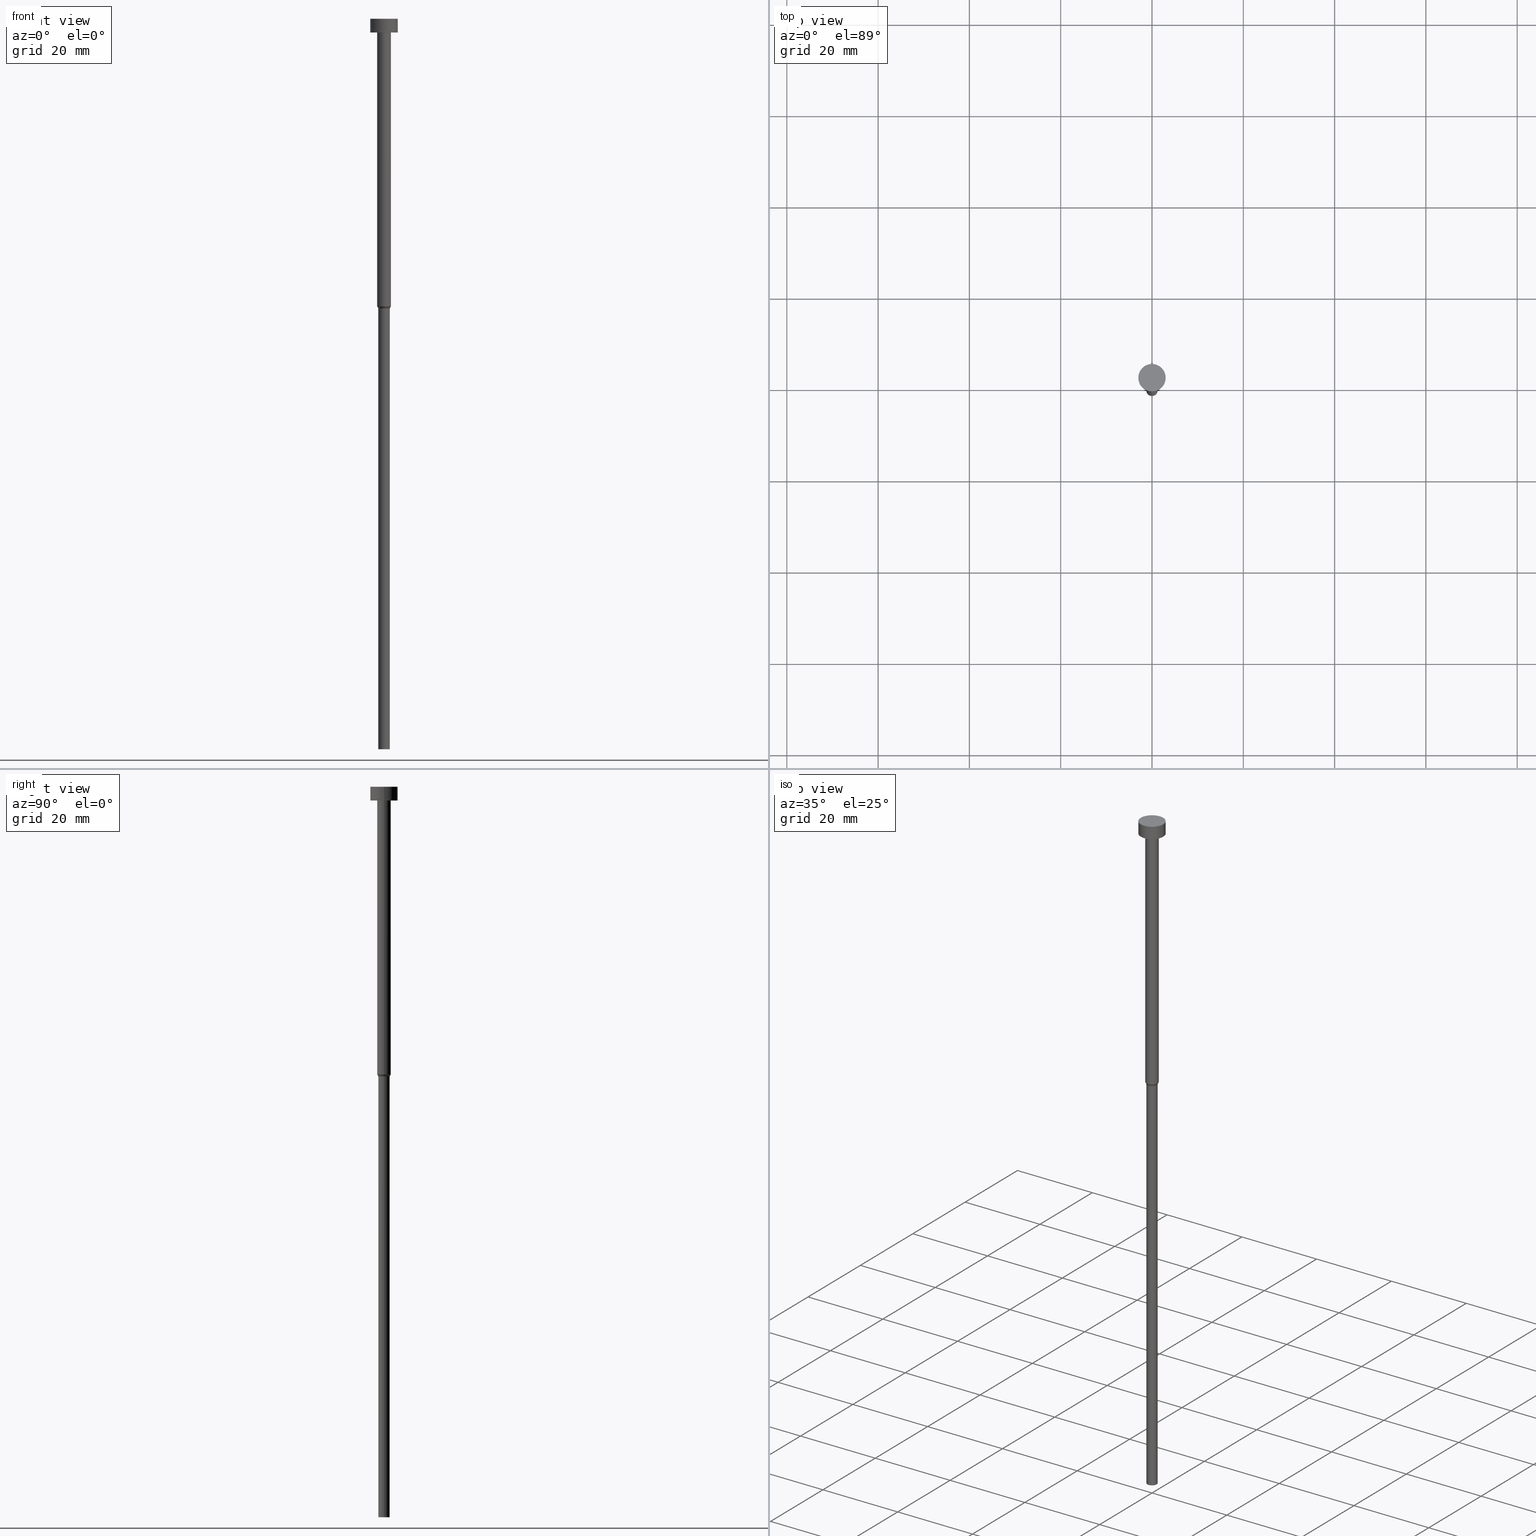
[diagram: canonical four-view strip — front | top / right | iso, engineering-drawing reading convention]
A machine part, canonical four-view strip (front | top / right | iso — engineering-drawing reading convention). The complete STEP part file that produces these views, byte-faithful:
ISO-10303-21;
HEADER;
FILE_DESCRIPTION (( 'STEP AP203' ),
    '1' );
FILE_NAME ('3f67.STEP',
    '2023-02-13T10:00:18',
    ( '' ),
    ( '' ),
    'SwSTEP 2.0',
    'SolidWorks 2019',
    '' );
FILE_SCHEMA (( 'CONFIG_CONTROL_DESIGN' ));
ENDSEC;

DATA;
#1 = EDGE_CURVE ( 'NONE', #96, #261, #192, .T. ) ;
#2 = CC_DESIGN_APPROVAL ( #142, ( #26 ) ) ;
#3 = CYLINDRICAL_SURFACE ( 'NONE', #204, 3.000000000000000000 ) ;
#4 = APPLICATION_PROTOCOL_DEFINITION ( 'international standard', 'config_control_design', 1994, #50 ) ;
#5 = DIRECTION ( 'NONE',  ( -0.000000000000000000, -0.000000000000000000, 1.000000000000000000 ) ) ;
#6 = ORIENTED_EDGE ( 'NONE', *, *, #60, .T. ) ;
#7 = DIRECTION ( 'NONE',  ( 1.000000000000000000, 0.000000000000000000, 0.000000000000000000 ) ) ;
#8 = SECURITY_CLASSIFICATION_LEVEL ( 'unclassified' ) ;
#9 = CARTESIAN_POINT ( 'NONE',  ( 0.000000000000000000, 0.000000000000000000, 0.000000000000000000 ) ) ;
#10 = APPROVAL_STATUS ( 'not_yet_approved' ) ;
#11 = EDGE_LOOP ( 'NONE', ( #21, #144, #273, #68 ) ) ;
#12 = PERSON_AND_ORGANIZATION ( #200, #281 ) ;
#13 = DIRECTION ( 'NONE',  ( 1.000000000000000000, 0.000000000000000000, 0.000000000000000000 ) ) ;
#14 = CIRCLE ( 'NONE', #118, 1.500000000000000000 ) ;
#15 = VERTEX_POINT ( 'NONE', #299 ) ;
#16 = FACE_OUTER_BOUND ( 'NONE', #74, .T. ) ;
#17 = ADVANCED_FACE ( 'NONE', ( #54 ), #3, .T. ) ;
#18 = ORIENTED_EDGE ( 'NONE', *, *, #148, .F. ) ;
#19 = AXIS2_PLACEMENT_3D ( 'NONE', #147, #85, #330 ) ;
#20 = SECURITY_CLASSIFICATION ( '', '', #8 ) ;
#21 = ORIENTED_EDGE ( 'NONE', *, *, #128, .F. ) ;
#22 = DIRECTION ( 'NONE',  ( -0.000000000000000000, -0.000000000000000000, 1.000000000000000000 ) ) ;
#23 = MANIFOLD_SOLID_BREP ( 'Rotovat1', #104 ) ;
#24 = CC_DESIGN_PERSON_AND_ORGANIZATION_ASSIGNMENT ( #62, #336, ( #20 ) ) ;
#25 = CALENDAR_DATE ( 2023, 13, 2 ) ;
#26 = PRODUCT_DEFINITION ( 'NEZN�M�', '', #177, #293 ) ;
#27 = PRODUCT ( '3f67', '3f67', '', ( #39 ) ) ;
#28 = COORDINATED_UNIVERSAL_TIME_OFFSET ( 1, 0, .AHEAD. ) ;
#29 = LINE ( 'NONE', #228, #346 ) ;
#30 = PERSON_AND_ORGANIZATION ( #200, #281 ) ;
#31 = CARTESIAN_POINT ( 'NONE',  ( -1.500000000000000000, 1.836970198721029934E-16, -63.00000000000000000 ) ) ;
#32 = CARTESIAN_POINT ( 'NONE',  ( 0.000000000000000000, 0.000000000000000000, 0.000000000000000000 ) ) ;
#33 = PERSON_AND_ORGANIZATION_ROLE ( 'creator' ) ;
#34 = CARTESIAN_POINT ( 'NONE',  ( 0.000000000000000000, 0.000000000000000000, -3.673940397442059868E-16 ) ) ;
#35 = CALENDAR_DATE ( 2023, 13, 2 ) ;
#36 = DIRECTION ( 'NONE',  ( -0.000000000000000000, -0.000000000000000000, 1.000000000000000000 ) ) ;
#37 = UNCERTAINTY_MEASURE_WITH_UNIT (LENGTH_MEASURE( 1.000000000000000082E-05 ), #139, 'distance_accuracy_value', 'NONE');
#38 = AXIS2_PLACEMENT_3D ( 'NONE', #92, #213, #316 ) ;
#39 = MECHANICAL_CONTEXT ( 'NONE', #50, 'mechanical' ) ;
#40 = VECTOR ( 'NONE', #269, 1000.000000000000000 ) ;
#41 = FACE_OUTER_BOUND ( 'NONE', #159, .T. ) ;
#42 = EDGE_CURVE ( 'NONE', #102, #226, #244, .T. ) ;
#43 = DATE_AND_TIME ( #35, #58 ) ;
#44 = ORIENTED_EDGE ( 'NONE', *, *, #234, .T. ) ;
#45 = DIRECTION ( 'NONE',  ( -0.000000000000000000, -0.000000000000000000, 1.000000000000000000 ) ) ;
#46 = ORIENTED_EDGE ( 'NONE', *, *, #1, .T. ) ;
#47 = PERSON_AND_ORGANIZATION ( #200, #281 ) ;
#48 = ORIENTED_EDGE ( 'NONE', *, *, #148, .T. ) ;
#49 = COORDINATED_UNIVERSAL_TIME_OFFSET ( 1, 0, .AHEAD. ) ;
#50 = APPLICATION_CONTEXT ( 'configuration controlled 3d designs of mechanical parts and assemblies' ) ;
#51 = PRODUCT_DEFINITION_SHAPE ( 'NONE', 'NONE',  #26 ) ;
#52 = DIRECTION ( 'NONE',  ( -0.000000000000000000, -0.000000000000000000, 1.000000000000000000 ) ) ;
#53 = COORDINATED_UNIVERSAL_TIME_OFFSET ( 1, 0, .AHEAD. ) ;
#54 = FACE_OUTER_BOUND ( 'NONE', #11, .T. ) ;
#55 = CYLINDRICAL_SURFACE ( 'NONE', #129, 1.500000000000000000 ) ;
#56 = CALENDAR_DATE ( 2023, 13, 2 ) ;
#57 = APPROVAL_DATE_TIME ( #248, #116 ) ;
#58 = LOCAL_TIME ( 11, 0, 18.00000000000000000, #275 ) ;
#59 = DIRECTION ( 'NONE',  ( -0.000000000000000000, -0.000000000000000000, 1.000000000000000000 ) ) ;
#60 = EDGE_CURVE ( 'NONE', #261, #96, #315, .T. ) ;
#61 = CYLINDRICAL_SURFACE ( 'NONE', #245, 1.250000000000000000 ) ;
#62 = PERSON_AND_ORGANIZATION ( #200, #281 ) ;
#63 = CARTESIAN_POINT ( 'NONE',  ( 1.500000000000000000, 0.000000000000000000, -63.00000000000000000 ) ) ;
#64 = ORIENTED_EDGE ( 'NONE', *, *, #65, .T. ) ;
#65 = EDGE_CURVE ( 'NONE', #151, #125, #339, .T. ) ;
#66 = CARTESIAN_POINT ( 'NONE',  ( -3.000000000000000000, 3.673940397442059868E-16, -3.673940397442059868E-16 ) ) ;
#67 = PERSON_AND_ORGANIZATION ( #200, #281 ) ;
#68 = ORIENTED_EDGE ( 'NONE', *, *, #352, .F. ) ;
#69 = ORIENTED_EDGE ( 'NONE', *, *, #352, .T. ) ;
#70 = EDGE_CURVE ( 'NONE', #226, #15, #240, .T. ) ;
#71 = AXIS2_PLACEMENT_3D ( 'NONE', #227, #278, #207 ) ;
#72 = APPROVAL_STATUS ( 'not_yet_approved' ) ;
#73 = APPROVAL ( #72, 'NEUR�EN�' ) ;
#74 = EDGE_LOOP ( 'NONE', ( #93, #209, #317, #175 ) ) ;
#75 = VECTOR ( 'NONE', #300, 1000.000000000000000 ) ;
#76 = CIRCLE ( 'NONE', #106, 3.000000000000000000 ) ;
#77 = DIRECTION ( 'NONE',  ( -1.000000000000000000, 0.000000000000000000, -0.000000000000000000 ) ) ;
#78 = APPROVAL_ROLE ( '' ) ;
#79 = DIRECTION ( 'NONE',  ( 0.4999999999999981681, 0.000000000000000000, 0.8660254037844395958 ) ) ;
#80 = DIRECTION ( 'NONE',  ( 1.000000000000000000, 0.000000000000000000, 0.000000000000000000 ) ) ;
#81 = ADVANCED_FACE ( 'NONE', ( #130 ), #344, .T. ) ;
#82 = APPROVAL_ROLE ( '' ) ;
#83 = VECTOR ( 'NONE', #260, 1000.000000000000000 ) ;
#84 = LOCAL_TIME ( 11, 0, 18.00000000000000000, #28 ) ;
#85 = DIRECTION ( 'NONE',  ( -0.000000000000000000, -0.000000000000000000, 1.000000000000000000 ) ) ;
#86 = PERSON_AND_ORGANIZATION ( #200, #281 ) ;
#87 = LINE ( 'NONE', #196, #75 ) ;
#88 = DIRECTION ( 'NONE',  ( -0.000000000000000000, -0.000000000000000000, 1.000000000000000000 ) ) ;
#89 = ADVANCED_FACE ( 'NONE', ( #16 ), #123, .T. ) ;
#90 = FACE_OUTER_BOUND ( 'NONE', #183, .T. ) ;
#91 = APPROVAL_PERSON_ORGANIZATION ( #30, #116, #78 ) ;
#92 = CARTESIAN_POINT ( 'NONE',  ( 0.000000000000000000, -3.000000000000000000, -3.000000000000000888 ) ) ;
#93 = ORIENTED_EDGE ( 'NONE', *, *, #218, .F. ) ;
#94 = PERSON_AND_ORGANIZATION ( #200, #281 ) ;
#95 = AXIS2_PLACEMENT_3D ( 'NONE', #173, #36, #140 ) ;
#96 = VERTEX_POINT ( 'NONE', #320 ) ;
#97 = DIRECTION ( 'NONE',  ( -0.000000000000000000, -0.000000000000000000, 1.000000000000000000 ) ) ;
#98 = FACE_OUTER_BOUND ( 'NONE', #242, .T. ) ;
#99 = LOCAL_TIME ( 11, 0, 18.00000000000000000, #49 ) ;
#100 = VERTEX_POINT ( 'NONE', #348 ) ;
#101 = ADVANCED_FACE ( 'NONE', ( #98 ), #323, .T. ) ;
#102 = VERTEX_POINT ( 'NONE', #264 ) ;
#103 = DIRECTION ( 'NONE',  ( 1.000000000000000000, 0.000000000000000000, 0.000000000000000000 ) ) ;
#104 = CLOSED_SHELL ( 'NONE', ( #101, #237, #179, #166, #110, #89, #345, #153, #214, #17, #81 ) ) ;
#105 = FACE_OUTER_BOUND ( 'NONE', #297, .T. ) ;
#106 = AXIS2_PLACEMENT_3D ( 'NONE', #309, #257, #338 ) ;
#107 = VECTOR ( 'NONE', #5, 1000.000000000000000 ) ;
#108 = CARTESIAN_POINT ( 'NONE',  ( 0.000000000000000000, 0.000000000000000000, -63.00000000000000000 ) ) ;
#109 = PERSON_AND_ORGANIZATION_ROLE ( 'design_supplier' ) ;
#110 = ADVANCED_FACE ( 'NONE', ( #105 ), #354, .T. ) ;
#111 = CARTESIAN_POINT ( 'NONE',  ( 0.000000000000000000, 0.000000000000000000, 0.000000000000000000 ) ) ;
#112 = CYLINDRICAL_SURFACE ( 'NONE', #95, 1.500000000000000000 ) ;
#113 = DIRECTION ( 'NONE',  ( -0.4999999999999981681, 6.123233995736742617E-17, 0.8660254037844395958 ) ) ;
#114 = ORIENTED_EDGE ( 'NONE', *, *, #321, .T. ) ;
#115 = VERTEX_POINT ( 'NONE', #132 ) ;
#116 = APPROVAL ( #247, 'NEUR�EN�' ) ;
#117 = CARTESIAN_POINT ( 'NONE',  ( -1.500000000000000000, 1.836970198721029934E-16, 0.000000000000000000 ) ) ;
#118 = AXIS2_PLACEMENT_3D ( 'NONE', #208, #88, #80 ) ;
#119 = APPLICATION_CONTEXT ( 'configuration controlled 3d designs of mechanical parts and assemblies' ) ;
#120 = EDGE_LOOP ( 'NONE', ( #277, #342, #313, #187 ) ) ;
#121 = APPROVAL_DATE_TIME ( #43, #142 ) ;
#122 = EDGE_CURVE ( 'NONE', #261, #286, #29, .T. ) ;
#123 = CYLINDRICAL_SURFACE ( 'NONE', #295, 1.250000000000000000 ) ;
#124 = ADVANCED_BREP_SHAPE_REPRESENTATION ( '3f67', ( #23, #290 ), #296 ) ;
#125 = VERTEX_POINT ( 'NONE', #353 ) ;
#126 = CIRCLE ( 'NONE', #351, 3.000000000000000000 ) ;
#127 = APPROVAL_PERSON_ORGANIZATION ( #94, #142, #82 ) ;
#128 = EDGE_CURVE ( 'NONE', #102, #181, #298, .T. ) ;
#129 = AXIS2_PLACEMENT_3D ( 'NONE', #168, #136, #7 ) ;
#130 = FACE_OUTER_BOUND ( 'NONE', #236, .T. ) ;
#131 = ORIENTED_EDGE ( 'NONE', *, *, #302, .F. ) ;
#132 = CARTESIAN_POINT ( 'NONE',  ( 1.500000000000000000, 0.000000000000000000, -3.000000000000000888 ) ) ;
#133 = LINE ( 'NONE', #337, #216 ) ;
#134 = CALENDAR_DATE ( 2023, 13, 2 ) ;
#135 = CC_DESIGN_PERSON_AND_ORGANIZATION_ASSIGNMENT ( #232, #211, ( #27 ) ) ;
#136 = DIRECTION ( 'NONE',  ( -0.000000000000000000, -0.000000000000000000, 1.000000000000000000 ) ) ;
#137 = DIRECTION ( 'NONE',  ( -0.000000000000000000, -0.000000000000000000, 1.000000000000000000 ) ) ;
#138 = FACE_OUTER_BOUND ( 'NONE', #120, .T. ) ;
#139 =( LENGTH_UNIT ( ) NAMED_UNIT ( * ) SI_UNIT ( .MILLI., .METRE. ) );
#140 = DIRECTION ( 'NONE',  ( 1.000000000000000000, 0.000000000000000000, 0.000000000000000000 ) ) ;
#141 = ORIENTED_EDGE ( 'NONE', *, *, #334, .F. ) ;
#142 = APPROVAL ( #10, 'NEUR�EN�' ) ;
#143 = DIRECTION ( 'NONE',  ( 1.000000000000000000, 0.000000000000000000, 0.000000000000000000 ) ) ;
#144 = ORIENTED_EDGE ( 'NONE', *, *, #42, .T. ) ;
#145 = AXIS2_PLACEMENT_3D ( 'NONE', #221, #194, #77 ) ;
#146 = VECTOR ( 'NONE', #79, 1000.000000000000114 ) ;
#147 = CARTESIAN_POINT ( 'NONE',  ( 0.000000000000000000, 0.000000000000000000, -63.00000000000000000 ) ) ;
#148 = EDGE_CURVE ( 'NONE', #15, #181, #126, .T. ) ;
#149 = AXIS2_PLACEMENT_3D ( 'NONE', #34, #303, #310 ) ;
#150 = DIRECTION ( 'NONE',  ( 1.000000000000000000, 0.000000000000000000, 0.000000000000000000 ) ) ;
#151 = VERTEX_POINT ( 'NONE', #197 ) ;
#152 = CARTESIAN_POINT ( 'NONE',  ( 0.000000000000000000, 0.000000000000000000, -3.000000000000000888 ) ) ;
#153 = ADVANCED_FACE ( 'NONE', ( #301 ), #55, .T. ) ;
#154 = CARTESIAN_POINT ( 'NONE',  ( 0.000000000000000000, 0.000000000000000000, -63.43301270189222407 ) ) ;
#155 = APPROVAL_ROLE ( '' ) ;
#156 = AXIS2_PLACEMENT_3D ( 'NONE', #219, #45, #324 ) ;
#157 = AXIS2_PLACEMENT_3D ( 'NONE', #312, #137, #103 ) ;
#158 = ORIENTED_EDGE ( 'NONE', *, *, #42, .F. ) ;
#159 = EDGE_LOOP ( 'NONE', ( #46, #331, #306, #252 ) ) ;
#160 = ORIENTED_EDGE ( 'NONE', *, *, #1, .F. ) ;
#161 = EDGE_CURVE ( 'NONE', #286, #188, #319, .T. ) ;
#162 = DIRECTION ( 'NONE',  ( -0.000000000000000000, -0.000000000000000000, 1.000000000000000000 ) ) ;
#163 = CIRCLE ( 'NONE', #292, 1.500000000000000000 ) ;
#164 = DIRECTION ( 'NONE',  ( 1.000000000000000000, 0.000000000000000000, 0.000000000000000000 ) ) ;
#165 = ORIENTED_EDGE ( 'NONE', *, *, #161, .F. ) ;
#166 = ADVANCED_FACE ( 'NONE', ( #210 ), #61, .T. ) ;
#167 =( NAMED_UNIT ( * ) PLANE_ANGLE_UNIT ( ) SI_UNIT ( $, .RADIAN. ) );
#168 = CARTESIAN_POINT ( 'NONE',  ( 0.000000000000000000, 0.000000000000000000, 0.000000000000000000 ) ) ;
#170 = CARTESIAN_POINT ( 'NONE',  ( 0.000000000000000000, 0.000000000000000000, -3.673940397442059868E-16 ) ) ;
#169 = CIRCLE ( 'NONE', #71, 1.500000000000000000 ) ;
#171 = APPROVAL_DATE_TIME ( #265, #73 ) ;
#172 = DIRECTION ( 'NONE',  ( 1.000000000000000000, 0.000000000000000000, 0.000000000000000000 ) ) ;
#173 = CARTESIAN_POINT ( 'NONE',  ( 0.000000000000000000, 0.000000000000000000, 0.000000000000000000 ) ) ;
#174 = EDGE_CURVE ( 'NONE', #286, #100, #282, .T. ) ;
#175 = ORIENTED_EDGE ( 'NONE', *, *, #60, .F. ) ;
#176 = CONICAL_SURFACE ( 'NONE', #19, 1.500000000000000000, 0.5235987755982968173 ) ;
#177 = PRODUCT_DEFINITION_FORMATION_WITH_SPECIFIED_SOURCE ( 'LIBOVOLN�', '', #27, .NOT_KNOWN. ) ;
#178 = FACE_BOUND ( 'NONE', #238, .T. ) ;
#179 = ADVANCED_FACE ( 'NONE', ( #41 ), #176, .T. ) ;
#180 = PERSON_AND_ORGANIZATION_ROLE ( 'creator' ) ;
#181 = VERTEX_POINT ( 'NONE', #66 ) ;
#182 = ORIENTED_EDGE ( 'NONE', *, *, #234, .F. ) ;
#183 = EDGE_LOOP ( 'NONE', ( #263, #158 ) ) ;
#184 = DIRECTION ( 'NONE',  ( 1.000000000000000000, 0.000000000000000000, 0.000000000000000000 ) ) ;
#185 = AXIS2_PLACEMENT_3D ( 'NONE', #32, #162, #164 ) ;
#186 = LOCAL_TIME ( 11, 0, 18.00000000000000000, #53 ) ;
#187 = ORIENTED_EDGE ( 'NONE', *, *, #321, .F. ) ;
#188 = VERTEX_POINT ( 'NONE', #206 ) ;
#189 = EDGE_CURVE ( 'NONE', #226, #102, #76, .T. ) ;
#190 = COORDINATED_UNIVERSAL_TIME_OFFSET ( 1, 0, .AHEAD. ) ;
#191 = CARTESIAN_POINT ( 'NONE',  ( 0.000000000000000000, 0.000000000000000000, -63.43301270189222407 ) ) ;
#192 = CIRCLE ( 'NONE', #325, 1.250000000000000000 ) ;
#193 = AXIS2_PLACEMENT_3D ( 'NONE', #329, #274, #143 ) ;
#194 = DIRECTION ( 'NONE',  ( 0.000000000000000000, 0.000000000000000000, -1.000000000000000000 ) ) ;
#195 = DATE_TIME_ROLE ( 'classification_date' ) ;
#196 = CARTESIAN_POINT ( 'NONE',  ( 1.250000000000000000, 0.000000000000000000, 0.000000000000000000 ) ) ;
#197 = CARTESIAN_POINT ( 'NONE',  ( 1.250000000000000000, 0.000000000000000000, -160.0000000000000000 ) ) ;
#198 = ORIENTED_EDGE ( 'NONE', *, *, #128, .T. ) ;
#199 = DIRECTION ( 'NONE',  ( -0.000000000000000000, -0.000000000000000000, 1.000000000000000000 ) ) ;
#200 = PERSON ( 'NEUR�EN�', 'NEUR�EN�', 'NEUR�EN�', ('NEUR�EN�'), ('NEUR�EN�'), ('NEUR�EN�') ) ;
#201 = ORIENTED_EDGE ( 'NONE', *, *, #218, .T. ) ;
#202 = DIRECTION ( 'NONE',  ( 0.000000000000000000, 0.000000000000000000, 1.000000000000000000 ) ) ;
#203 = CC_DESIGN_DATE_AND_TIME_ASSIGNMENT ( #305, #195, ( #20 ) ) ;
#204 = AXIS2_PLACEMENT_3D ( 'NONE', #9, #199, #272 ) ;
#206 = CARTESIAN_POINT ( 'NONE',  ( 1.500000000000000000, 0.000000000000000000, -63.00000000000000000 ) ) ;
#205 = CC_DESIGN_APPROVAL ( #116, ( #20 ) ) ;
#207 = DIRECTION ( 'NONE',  ( 1.000000000000000000, 0.000000000000000000, 0.000000000000000000 ) ) ;
#208 = CARTESIAN_POINT ( 'NONE',  ( 0.000000000000000000, 0.000000000000000000, -3.000000000000000888 ) ) ;
#209 = ORIENTED_EDGE ( 'NONE', *, *, #302, .T. ) ;
#210 = FACE_OUTER_BOUND ( 'NONE', #276, .T. ) ;
#211 = PERSON_AND_ORGANIZATION_ROLE ( 'design_owner' ) ;
#212 = PLANE ( 'NONE',  #38 ) ;
#213 = DIRECTION ( 'NONE',  ( 0.000000000000000000, 0.000000000000000000, -1.000000000000000000 ) ) ;
#214 = ADVANCED_FACE ( 'NONE', ( #178, #90 ), #212, .T. ) ;
#215 = DIRECTION ( 'NONE',  ( 1.000000000000000000, 0.000000000000000000, 0.000000000000000000 ) ) ;
#216 = VECTOR ( 'NONE', #326, 1000.000000000000000 ) ;
#217 = DATE_AND_TIME ( #25, #99 ) ;
#218 = EDGE_CURVE ( 'NONE', #125, #261, #349, .T. ) ;
#219 = CARTESIAN_POINT ( 'NONE',  ( 0.000000000000000000, 0.000000000000000000, -160.0000000000000000 ) ) ;
#220 = DATE_TIME_ROLE ( 'creation_date' ) ;
#221 = CARTESIAN_POINT ( 'NONE',  ( 0.000000000000000000, 0.000000000000000000, -160.0000000000000000 ) ) ;
#222 = DIRECTION ( 'NONE',  ( 1.000000000000000000, 0.000000000000000000, 0.000000000000000000 ) ) ;
#223 = CARTESIAN_POINT ( 'NONE',  ( 3.000000000000000000, 0.000000000000000000, -3.000000000000000888 ) ) ;
#224 = CARTESIAN_POINT ( 'NONE',  ( -3.000000000000000000, 3.673940397442059868E-16, 0.000000000000000000 ) ) ;
#225 = SHAPE_DEFINITION_REPRESENTATION ( #51, #124 ) ;
#226 = VERTEX_POINT ( 'NONE', #223 ) ;
#227 = CARTESIAN_POINT ( 'NONE',  ( 0.000000000000000000, 0.000000000000000000, -63.00000000000000000 ) ) ;
#228 = CARTESIAN_POINT ( 'NONE',  ( -1.500000000000000000, 1.836970198721029934E-16, -63.00000000000000000 ) ) ;
#229 = CC_DESIGN_DATE_AND_TIME_ASSIGNMENT ( #217, #220, ( #26 ) ) ;
#230 = APPROVAL_PERSON_ORGANIZATION ( #47, #73, #155 ) ;
#231 = CARTESIAN_POINT ( 'NONE',  ( -1.250000000000000000, 1.530808498934191571E-16, -63.43301270189222407 ) ) ;
#232 = PERSON_AND_ORGANIZATION ( #200, #281 ) ;
#233 = DIRECTION ( 'NONE',  ( -0.000000000000000000, -0.000000000000000000, 1.000000000000000000 ) ) ;
#234 = EDGE_CURVE ( 'NONE', #100, #115, #14, .T. ) ;
#235 = CC_DESIGN_SECURITY_CLASSIFICATION ( #20, ( #177 ) ) ;
#236 = EDGE_LOOP ( 'NONE', ( #48, #69 ) ) ;
#237 = ADVANCED_FACE ( 'NONE', ( #138 ), #112, .T. ) ;
#238 = EDGE_LOOP ( 'NONE', ( #270, #44 ) ) ;
#239 = CARTESIAN_POINT ( 'NONE',  ( 0.000000000000000000, 0.000000000000000000, 0.000000000000000000 ) ) ;
#240 = LINE ( 'NONE', #289, #83 ) ;
#241 = ORIENTED_EDGE ( 'NONE', *, *, #65, .F. ) ;
#242 = EDGE_LOOP ( 'NONE', ( #343, #198, #18, #271 ) ) ;
#243 = ORIENTED_EDGE ( 'NONE', *, *, #161, .T. ) ;
#244 = CIRCLE ( 'NONE', #280, 3.000000000000000000 ) ;
#245 = AXIS2_PLACEMENT_3D ( 'NONE', #341, #233, #335 ) ;
#246 = PRODUCT_RELATED_PRODUCT_CATEGORY ( 'detail', '', ( #27 ) ) ;
#247 = APPROVAL_STATUS ( 'not_yet_approved' ) ;
#248 = DATE_AND_TIME ( #56, #84 ) ;
#249 = EDGE_LOOP ( 'NONE', ( #279, #6, #251, #165 ) ) ;
#250 = EDGE_CURVE ( 'NONE', #115, #100, #163, .T. ) ;
#251 = ORIENTED_EDGE ( 'NONE', *, *, #266, .T. ) ;
#252 = ORIENTED_EDGE ( 'NONE', *, *, #266, .F. ) ;
#253 =( NAMED_UNIT ( * ) SI_UNIT ( $, .STERADIAN. ) SOLID_ANGLE_UNIT ( ) );
#254 = CARTESIAN_POINT ( 'NONE',  ( -1.250000000000000000, 1.530808498934191571E-16, 0.000000000000000000 ) ) ;
#255 = AXIS2_PLACEMENT_3D ( 'NONE', #108, #328, #304 ) ;
#256 = CC_DESIGN_PERSON_AND_ORGANIZATION_ASSIGNMENT ( #86, #33, ( #177 ) ) ;
#257 = DIRECTION ( 'NONE',  ( -0.000000000000000000, -0.000000000000000000, 1.000000000000000000 ) ) ;
#258 = DIRECTION ( 'NONE',  ( -0.000000000000000000, -0.000000000000000000, 1.000000000000000000 ) ) ;
#259 = CONICAL_SURFACE ( 'NONE', #193, 1.500000000000000000, 0.5235987755982968173 ) ;
#260 = DIRECTION ( 'NONE',  ( -0.000000000000000000, -0.000000000000000000, 1.000000000000000000 ) ) ;
#261 = VERTEX_POINT ( 'NONE', #231 ) ;
#262 = DIRECTION ( 'NONE',  ( 0.000000000000000000, -0.000000000000000000, 1.000000000000000000 ) ) ;
#263 = ORIENTED_EDGE ( 'NONE', *, *, #189, .F. ) ;
#264 = CARTESIAN_POINT ( 'NONE',  ( -3.000000000000000000, 3.673940397442059868E-16, -3.000000000000000888 ) ) ;
#265 = DATE_AND_TIME ( #294, #308 ) ;
#266 = EDGE_CURVE ( 'NONE', #96, #188, #332, .T. ) ;
#267 = AXIS2_PLACEMENT_3D ( 'NONE', #154, #22, #322 ) ;
#268 = DIRECTION ( 'NONE',  ( -0.000000000000000000, -0.000000000000000000, 1.000000000000000000 ) ) ;
#269 = DIRECTION ( 'NONE',  ( -0.000000000000000000, -0.000000000000000000, 1.000000000000000000 ) ) ;
#270 = ORIENTED_EDGE ( 'NONE', *, *, #250, .T. ) ;
#271 = ORIENTED_EDGE ( 'NONE', *, *, #70, .F. ) ;
#272 = DIRECTION ( 'NONE',  ( 1.000000000000000000, 0.000000000000000000, 0.000000000000000000 ) ) ;
#273 = ORIENTED_EDGE ( 'NONE', *, *, #70, .T. ) ;
#274 = DIRECTION ( 'NONE',  ( -0.000000000000000000, -0.000000000000000000, 1.000000000000000000 ) ) ;
#275 = COORDINATED_UNIVERSAL_TIME_OFFSET ( 1, 0, .AHEAD. ) ;
#276 = EDGE_LOOP ( 'NONE', ( #64, #201, #160, #141 ) ) ;
#277 = ORIENTED_EDGE ( 'NONE', *, *, #283, .T. ) ;
#278 = DIRECTION ( 'NONE',  ( -0.000000000000000000, -0.000000000000000000, 1.000000000000000000 ) ) ;
#279 = ORIENTED_EDGE ( 'NONE', *, *, #122, .F. ) ;
#280 = AXIS2_PLACEMENT_3D ( 'NONE', #152, #287, #184 ) ;
#282 = LINE ( 'NONE', #117, #291 ) ;
#281 = ORGANIZATION ( 'NEUR�EN�', 'NEUR�EN�', '' ) ;
#283 = EDGE_CURVE ( 'NONE', #188, #286, #169, .T. ) ;
#284 = ORIENTED_EDGE ( 'NONE', *, *, #174, .F. ) ;
#285 = CARTESIAN_POINT ( 'NONE',  ( 0.000000000000000000, 0.000000000000000000, -1.836970198721029934E-16 ) ) ;
#286 = VERTEX_POINT ( 'NONE', #31 ) ;
#287 = DIRECTION ( 'NONE',  ( -0.000000000000000000, -0.000000000000000000, 1.000000000000000000 ) ) ;
#288 = CC_DESIGN_PERSON_AND_ORGANIZATION_ASSIGNMENT ( #67, #180, ( #26 ) ) ;
#289 = CARTESIAN_POINT ( 'NONE',  ( 3.000000000000000000, 0.000000000000000000, 0.000000000000000000 ) ) ;
#290 = AXIS2_PLACEMENT_3D ( 'NONE', #111, #202, #172 ) ;
#291 = VECTOR ( 'NONE', #258, 1000.000000000000000 ) ;
#292 = AXIS2_PLACEMENT_3D ( 'NONE', #355, #59, #13 ) ;
#293 = DESIGN_CONTEXT ( 'detailed design', #119, 'design' ) ;
#294 = CALENDAR_DATE ( 2023, 13, 2 ) ;
#295 = AXIS2_PLACEMENT_3D ( 'NONE', #239, #97, #215 ) ;
#296 =( GEOMETRIC_REPRESENTATION_CONTEXT ( 3 ) GLOBAL_UNCERTAINTY_ASSIGNED_CONTEXT ( ( #37 ) ) GLOBAL_UNIT_ASSIGNED_CONTEXT ( ( #139, #167, #253 ) ) REPRESENTATION_CONTEXT ( 'NONE', 'WORKASPACE' ) );
#297 = EDGE_LOOP ( 'NONE', ( #241, #131 ) ) ;
#298 = LINE ( 'NONE', #224, #40 ) ;
#299 = CARTESIAN_POINT ( 'NONE',  ( 3.000000000000000000, 0.000000000000000000, -3.673940397442059868E-16 ) ) ;
#300 = DIRECTION ( 'NONE',  ( -0.000000000000000000, -0.000000000000000000, 1.000000000000000000 ) ) ;
#301 = FACE_OUTER_BOUND ( 'NONE', #347, .T. ) ;
#302 = EDGE_CURVE ( 'NONE', #125, #151, #340, .T. ) ;
#303 = DIRECTION ( 'NONE',  ( -0.000000000000000000, -0.000000000000000000, 1.000000000000000000 ) ) ;
#304 = DIRECTION ( 'NONE',  ( 1.000000000000000000, 0.000000000000000000, 0.000000000000000000 ) ) ;
#305 = DATE_AND_TIME ( #134, #186 ) ;
#306 = ORIENTED_EDGE ( 'NONE', *, *, #283, .F. ) ;
#307 = FACE_OUTER_BOUND ( 'NONE', #249, .T. ) ;
#308 = LOCAL_TIME ( 11, 0, 18.00000000000000000, #190 ) ;
#309 = CARTESIAN_POINT ( 'NONE',  ( 0.000000000000000000, 0.000000000000000000, -3.000000000000000888 ) ) ;
#310 = DIRECTION ( 'NONE',  ( 1.000000000000000000, 0.000000000000000000, 0.000000000000000000 ) ) ;
#311 = CC_DESIGN_PERSON_AND_ORGANIZATION_ASSIGNMENT ( #12, #109, ( #177 ) ) ;
#312 = CARTESIAN_POINT ( 'NONE',  ( 0.000000000000000000, 0.000000000000000000, -160.0000000000000000 ) ) ;
#313 = ORIENTED_EDGE ( 'NONE', *, *, #250, .F. ) ;
#314 = APPLICATION_PROTOCOL_DEFINITION ( 'international standard', 'config_control_design', 1994, #119 ) ;
#315 = CIRCLE ( 'NONE', #267, 1.250000000000000000 ) ;
#316 = DIRECTION ( 'NONE',  ( -1.000000000000000000, 0.000000000000000000, -0.000000000000000000 ) ) ;
#317 = ORIENTED_EDGE ( 'NONE', *, *, #334, .T. ) ;
#318 = AXIS2_PLACEMENT_3D ( 'NONE', #285, #262, #150 ) ;
#319 = CIRCLE ( 'NONE', #255, 1.500000000000000000 ) ;
#320 = CARTESIAN_POINT ( 'NONE',  ( 1.250000000000000000, 0.000000000000000000, -63.43301270189222407 ) ) ;
#321 = EDGE_CURVE ( 'NONE', #188, #115, #133, .T. ) ;
#322 = DIRECTION ( 'NONE',  ( 1.000000000000000000, 0.000000000000000000, 0.000000000000000000 ) ) ;
#323 = CYLINDRICAL_SURFACE ( 'NONE', #185, 3.000000000000000000 ) ;
#324 = DIRECTION ( 'NONE',  ( 1.000000000000000000, 0.000000000000000000, 0.000000000000000000 ) ) ;
#325 = AXIS2_PLACEMENT_3D ( 'NONE', #191, #268, #222 ) ;
#326 = DIRECTION ( 'NONE',  ( -0.000000000000000000, -0.000000000000000000, 1.000000000000000000 ) ) ;
#327 = DIRECTION ( 'NONE',  ( 1.000000000000000000, 0.000000000000000000, 0.000000000000000000 ) ) ;
#328 = DIRECTION ( 'NONE',  ( -0.000000000000000000, -0.000000000000000000, 1.000000000000000000 ) ) ;
#329 = CARTESIAN_POINT ( 'NONE',  ( 0.000000000000000000, 0.000000000000000000, -63.00000000000000000 ) ) ;
#330 = DIRECTION ( 'NONE',  ( 1.000000000000000000, 0.000000000000000000, 0.000000000000000000 ) ) ;
#331 = ORIENTED_EDGE ( 'NONE', *, *, #122, .T. ) ;
#332 = LINE ( 'NONE', #63, #146 ) ;
#333 = CIRCLE ( 'NONE', #149, 3.000000000000000000 ) ;
#334 = EDGE_CURVE ( 'NONE', #151, #96, #87, .T. ) ;
#335 = DIRECTION ( 'NONE',  ( 1.000000000000000000, 0.000000000000000000, 0.000000000000000000 ) ) ;
#336 = PERSON_AND_ORGANIZATION_ROLE ( 'classification_officer' ) ;
#337 = CARTESIAN_POINT ( 'NONE',  ( 1.500000000000000000, 0.000000000000000000, 0.000000000000000000 ) ) ;
#338 = DIRECTION ( 'NONE',  ( 1.000000000000000000, 0.000000000000000000, 0.000000000000000000 ) ) ;
#339 = CIRCLE ( 'NONE', #156, 1.250000000000000000 ) ;
#340 = CIRCLE ( 'NONE', #157, 1.250000000000000000 ) ;
#341 = CARTESIAN_POINT ( 'NONE',  ( 0.000000000000000000, 0.000000000000000000, 0.000000000000000000 ) ) ;
#342 = ORIENTED_EDGE ( 'NONE', *, *, #174, .T. ) ;
#343 = ORIENTED_EDGE ( 'NONE', *, *, #189, .T. ) ;
#344 = PLANE ( 'NONE',  #318 ) ;
#345 = ADVANCED_FACE ( 'NONE', ( #307 ), #259, .T. ) ;
#346 = VECTOR ( 'NONE', #113, 1000.000000000000114 ) ;
#347 = EDGE_LOOP ( 'NONE', ( #284, #243, #114, #182 ) ) ;
#348 = CARTESIAN_POINT ( 'NONE',  ( -1.500000000000000000, 1.836970198721029934E-16, -3.000000000000000888 ) ) ;
#349 = LINE ( 'NONE', #254, #107 ) ;
#350 = CC_DESIGN_APPROVAL ( #73, ( #177 ) ) ;
#351 = AXIS2_PLACEMENT_3D ( 'NONE', #170, #52, #327 ) ;
#352 = EDGE_CURVE ( 'NONE', #181, #15, #333, .T. ) ;
#353 = CARTESIAN_POINT ( 'NONE',  ( -1.250000000000000000, 1.530808498934191571E-16, -160.0000000000000000 ) ) ;
#354 = PLANE ( 'NONE',  #145 ) ;
#355 = CARTESIAN_POINT ( 'NONE',  ( 0.000000000000000000, 0.000000000000000000, -3.000000000000000888 ) ) ;
ENDSEC;
END-ISO-10303-21;
